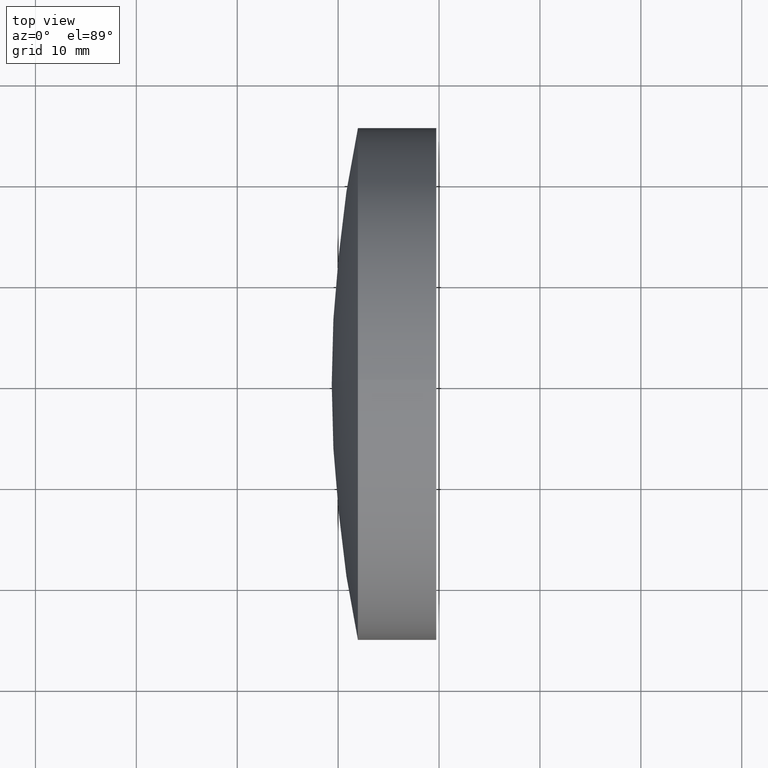
[diagram: clean part render]
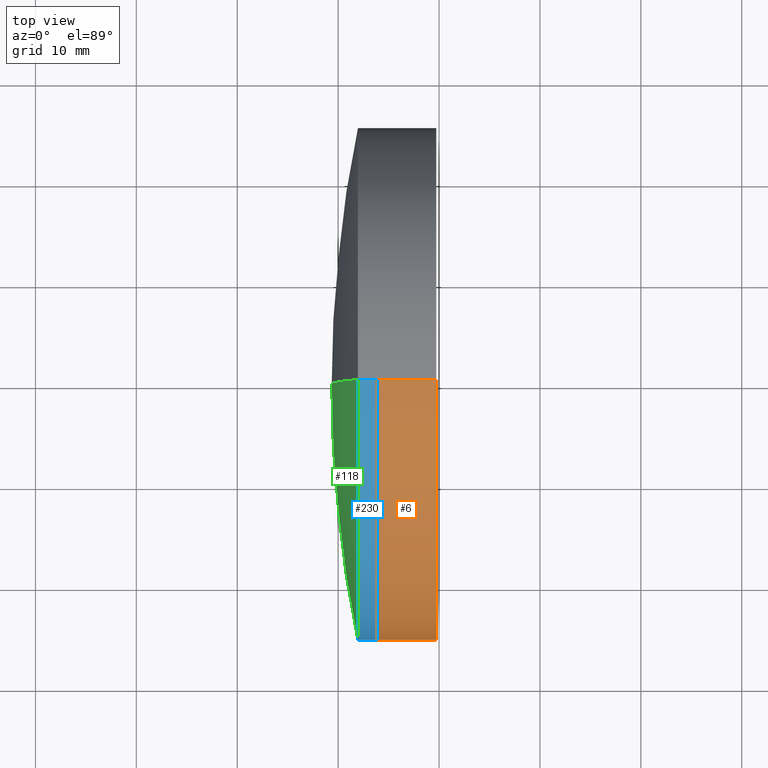
[diagram: same view with three faces highlighted in distinct colors, each labeled with its STEP entity id]
A machine part, top view with three faces highlighted in distinct colors.
Their STEP definitions:

[orange] entity #6 — the highlighted cylindrical surface (partial cylindrical patch) has radius 25.4 mm, axis along (-1, -0, -0).
#6 = ADVANCED_FACE ( 'NONE', ( #19 ), #63, .T. ) ;
#19 = FACE_OUTER_BOUND ( 'NONE', #71, .T. ) ;
#20 = EDGE_CURVE ( 'NONE', #305, #276, #72, .T. ) ;
#32 = DIRECTION ( 'NONE',  ( -1.000000000000000000, -0.0000000000000000000, -0.0000000000000000000 ) ) ;
#33 = EDGE_CURVE ( 'NONE', #60, #251, #267, .T. ) ;
#38 = VECTOR ( 'NONE', #32, 1000.000000000000000 ) ;
#39 = DIRECTION ( 'NONE',  ( 0.0000000000000000000, 0.0000000000000000000, 1.000000000000000000 ) ) ;
#58 = CARTESIAN_POINT ( 'NONE',  ( 209.7231034970280100, 0.0000000000000000000, -25.40000000000006300 ) ) ;
#60 = VERTEX_POINT ( 'NONE', #96 ) ;
#63 = CYLINDRICAL_SURFACE ( 'NONE', #67, 25.40000000000001300 ) ;
#67 = AXIS2_PLACEMENT_3D ( 'NONE', #206, #278, #39 ) ;
#71 = EDGE_LOOP ( 'NONE', ( #85, #148, #83, #233 ) ) ;
#72 = CIRCLE ( 'NONE', #153, 25.40000000000001300 ) ;
#81 = EDGE_CURVE ( 'NONE', #276, #251, #229, .T. ) ;
#83 = ORIENTED_EDGE ( 'NONE', *, *, #81, .T. ) ;
#85 = ORIENTED_EDGE ( 'NONE', *, *, #342, .F. ) ;
#96 = CARTESIAN_POINT ( 'NONE',  ( 203.8548626975037100, 0.0000000000000000000, -25.40000000000001300 ) ) ;
#98 = CARTESIAN_POINT ( 'NONE',  ( -0.5519199926577972300, 3.110602869834278400E-015, -25.40000000000001300 ) ) ;
#105 = CARTESIAN_POINT ( 'NONE',  ( 209.7231034970280100, -3.110602869834284800E-015, 25.40000000000006300 ) ) ;
#107 = CARTESIAN_POINT ( 'NONE',  ( 203.8548626975037100, 0.0000000000000000000, 0.0000000000000000000 ) ) ;
#111 = LINE ( 'NONE', #98, #38 ) ;
#116 = AXIS2_PLACEMENT_3D ( 'NONE', #107, #181, #236 ) ;
#117 = CARTESIAN_POINT ( 'NONE',  ( 209.7231034970280100, 0.0000000000000000000, 0.0000000000000000000 ) ) ;
#143 = DIRECTION ( 'NONE',  ( -1.000000000000000000, -0.0000000000000000000, -0.0000000000000000000 ) ) ;
#148 = ORIENTED_EDGE ( 'NONE', *, *, #20, .T. ) ;
#153 = AXIS2_PLACEMENT_3D ( 'NONE', #117, #143, #207 ) ;
#179 = CARTESIAN_POINT ( 'NONE',  ( -0.5519199926577972300, 0.0000000000000000000, 25.40000000000001300 ) ) ;
#181 = DIRECTION ( 'NONE',  ( -1.000000000000000000, -0.0000000000000000000, -0.0000000000000000000 ) ) ;
#182 = CARTESIAN_POINT ( 'NONE',  ( 203.8548626975037100, -3.110602869834278400E-015, 25.40000000000004100 ) ) ;
#204 = VECTOR ( 'NONE', #264, 1000.000000000000000 ) ;
#206 = CARTESIAN_POINT ( 'NONE',  ( -0.5519199926577972300, 0.0000000000000000000, 0.0000000000000000000 ) ) ;
#207 = DIRECTION ( 'NONE',  ( 0.0000000000000000000, 0.0000000000000000000, 1.000000000000000000 ) ) ;
#229 = LINE ( 'NONE', #179, #204 ) ;
#233 = ORIENTED_EDGE ( 'NONE', *, *, #33, .F. ) ;
#236 = DIRECTION ( 'NONE',  ( 0.0000000000000000000, 0.0000000000000000000, 1.000000000000000000 ) ) ;
#251 = VERTEX_POINT ( 'NONE', #182 ) ;
#264 = DIRECTION ( 'NONE',  ( -1.000000000000000000, -0.0000000000000000000, -0.0000000000000000000 ) ) ;
#267 = CIRCLE ( 'NONE', #116, 25.40000000000001300 ) ;
#276 = VERTEX_POINT ( 'NONE', #105 ) ;
#278 = DIRECTION ( 'NONE',  ( -1.000000000000000000, -0.0000000000000000000, -0.0000000000000000000 ) ) ;
#305 = VERTEX_POINT ( 'NONE', #58 ) ;
#342 = EDGE_CURVE ( 'NONE', #305, #60, #111, .T. ) ;

[blue] entity #230 — the highlighted cylindrical surface (partial cylindrical patch) has radius 25.4 mm, axis along (-1, -0, -0).
#2 = AXIS2_PLACEMENT_3D ( 'NONE', #18, #268, #275 ) ;
#10 = EDGE_CURVE ( 'NONE', #320, #245, #237, .T. ) ;
#13 = DIRECTION ( 'NONE',  ( 0.0000000000000000000, 0.0000000000000000000, 1.000000000000000000 ) ) ;
#18 = CARTESIAN_POINT ( 'NONE',  ( -0.8160621761658039000, 0.0000000000000000000, 0.0000000000000000000 ) ) ;
#21 = CYLINDRICAL_SURFACE ( 'NONE', #2, 25.40000000000002700 ) ;
#44 = CARTESIAN_POINT ( 'NONE',  ( 203.8548626975037100, 3.110602869834281200E-015, -25.40000000000003400 ) ) ;
#51 = CARTESIAN_POINT ( 'NONE',  ( 201.9598910091916100, 0.0000000000000000000, 0.0000000000000000000 ) ) ;
#55 = EDGE_CURVE ( 'NONE', #328, #304, #243, .T. ) ;
#57 = CARTESIAN_POINT ( 'NONE',  ( -0.8160621761658039000, 3.110602869834280400E-015, -25.40000000000002700 ) ) ;
#126 = EDGE_CURVE ( 'NONE', #245, #304, #208, .T. ) ;
#127 = CARTESIAN_POINT ( 'NONE',  ( 203.8548626975037100, 0.0000000000000000000, 25.40000000000003100 ) ) ;
#135 = AXIS2_PLACEMENT_3D ( 'NONE', #303, #228, #13 ) ;
#138 = CARTESIAN_POINT ( 'NONE',  ( 201.9598910091916100, -3.110602869834281600E-015, 25.40000000000007000 ) ) ;
#142 = LINE ( 'NONE', #57, #154 ) ;
#154 = VECTOR ( 'NONE', #282, 1000.000000000000000 ) ;
#161 = EDGE_CURVE ( 'NONE', #320, #328, #142, .T. ) ;
#170 = AXIS2_PLACEMENT_3D ( 'NONE', #51, #220, #180 ) ;
#178 = EDGE_LOOP ( 'NONE', ( #310, #287, #216, #211 ) ) ;
#180 = DIRECTION ( 'NONE',  ( 0.0000000000000000000, 0.0000000000000000000, 1.000000000000000000 ) ) ;
#208 = LINE ( 'NONE', #272, #248 ) ;
#211 = ORIENTED_EDGE ( 'NONE', *, *, #55, .F. ) ;
#213 = CARTESIAN_POINT ( 'NONE',  ( 201.9598910091916100, 0.0000000000000000000, -25.40000000000003800 ) ) ;
#216 = ORIENTED_EDGE ( 'NONE', *, *, #126, .T. ) ;
#220 = DIRECTION ( 'NONE',  ( -1.000000000000000000, -0.0000000000000000000, -0.0000000000000000000 ) ) ;
#228 = DIRECTION ( 'NONE',  ( -1.000000000000000000, -0.0000000000000000000, -0.0000000000000000000 ) ) ;
#230 = ADVANCED_FACE ( 'NONE', ( #262 ), #21, .T. ) ;
#237 = CIRCLE ( 'NONE', #135, 25.40000000000003100 ) ;
#243 = CIRCLE ( 'NONE', #170, 25.40000000000002700 ) ;
#245 = VERTEX_POINT ( 'NONE', #127 ) ;
#248 = VECTOR ( 'NONE', #325, 1000.000000000000000 ) ;
#262 = FACE_OUTER_BOUND ( 'NONE', #178, .T. ) ;
#268 = DIRECTION ( 'NONE',  ( -1.000000000000000000, -0.0000000000000000000, -0.0000000000000000000 ) ) ;
#272 = CARTESIAN_POINT ( 'NONE',  ( -0.8160621761658039000, 0.0000000000000000000, 25.40000000000002700 ) ) ;
#275 = DIRECTION ( 'NONE',  ( 0.0000000000000000000, 0.0000000000000000000, 1.000000000000000000 ) ) ;
#282 = DIRECTION ( 'NONE',  ( -1.000000000000000000, -0.0000000000000000000, -0.0000000000000000000 ) ) ;
#287 = ORIENTED_EDGE ( 'NONE', *, *, #10, .T. ) ;
#303 = CARTESIAN_POINT ( 'NONE',  ( 203.8548626975037100, 0.0000000000000000000, 0.0000000000000000000 ) ) ;
#304 = VERTEX_POINT ( 'NONE', #138 ) ;
#310 = ORIENTED_EDGE ( 'NONE', *, *, #161, .F. ) ;
#320 = VERTEX_POINT ( 'NONE', #44 ) ;
#325 = DIRECTION ( 'NONE',  ( -1.000000000000000000, -0.0000000000000000000, -0.0000000000000000000 ) ) ;
#328 = VERTEX_POINT ( 'NONE', #213 ) ;

[green] entity #118 — the highlighted spherical surface has radius 125.6 mm.
#26 = DIRECTION ( 'NONE',  ( 0.0000000000000000000, 1.224646799147353000E-016, -1.000000000000000000 ) ) ;
#29 = DIRECTION ( 'NONE',  ( 0.0000000000000000000, -1.000000000000000000, -1.224646799147353200E-016 ) ) ;
#36 = ORIENTED_EDGE ( 'NONE', *, *, #261, .T. ) ;
#37 = DIRECTION ( 'NONE',  ( 0.0000000000000000000, 0.0000000000000000000, -1.000000000000000000 ) ) ;
#45 = VERTEX_POINT ( 'NONE', #99 ) ;
#48 = SPHERICAL_SURFACE ( 'NONE', #90, 125.6000000000000200 ) ;
#51 = CARTESIAN_POINT ( 'NONE',  ( 201.9598910091916100, 0.0000000000000000000, 0.0000000000000000000 ) ) ;
#55 = EDGE_CURVE ( 'NONE', #328, #304, #243, .T. ) ;
#66 = EDGE_LOOP ( 'NONE', ( #266, #36, #190 ) ) ;
#82 = CIRCLE ( 'NONE', #231, 125.6000000000000200 ) ;
#90 = AXIS2_PLACEMENT_3D ( 'NONE', #313, #339, #37 ) ;
#99 = CARTESIAN_POINT ( 'NONE',  ( 199.3647689612468000, 0.0000000000000000000, 2.205018955359889700E-014 ) ) ;
#118 = ADVANCED_FACE ( 'NONE', ( #346 ), #48, .T. ) ;
#138 = CARTESIAN_POINT ( 'NONE',  ( 201.9598910091916100, -3.110602869834281600E-015, 25.40000000000007000 ) ) ;
#163 = DIRECTION ( 'NONE',  ( 0.0000000000000000000, 0.0000000000000000000, 1.000000000000000000 ) ) ;
#170 = AXIS2_PLACEMENT_3D ( 'NONE', #51, #220, #180 ) ;
#180 = DIRECTION ( 'NONE',  ( 0.0000000000000000000, 0.0000000000000000000, 1.000000000000000000 ) ) ;
#188 = CARTESIAN_POINT ( 'NONE',  ( 324.9647689612468200, 0.0000000000000000000, 2.974097145224427900E-014 ) ) ;
#190 = ORIENTED_EDGE ( 'NONE', *, *, #323, .F. ) ;
#213 = CARTESIAN_POINT ( 'NONE',  ( 201.9598910091916100, 0.0000000000000000000, -25.40000000000003800 ) ) ;
#215 = AXIS2_PLACEMENT_3D ( 'NONE', #259, #289, #163 ) ;
#220 = DIRECTION ( 'NONE',  ( -1.000000000000000000, -0.0000000000000000000, -0.0000000000000000000 ) ) ;
#223 = CIRCLE ( 'NONE', #215, 125.6000000000000200 ) ;
#231 = AXIS2_PLACEMENT_3D ( 'NONE', #188, #29, #26 ) ;
#243 = CIRCLE ( 'NONE', #170, 25.40000000000002700 ) ;
#259 = CARTESIAN_POINT ( 'NONE',  ( 324.9647689612468200, 0.0000000000000000000, 2.974097145224427900E-014 ) ) ;
#261 = EDGE_CURVE ( 'NONE', #304, #45, #82, .T. ) ;
#266 = ORIENTED_EDGE ( 'NONE', *, *, #55, .T. ) ;
#289 = DIRECTION ( 'NONE',  ( 0.0000000000000000000, 1.000000000000000000, -0.0000000000000000000 ) ) ;
#304 = VERTEX_POINT ( 'NONE', #138 ) ;
#313 = CARTESIAN_POINT ( 'NONE',  ( 324.9647689612468200, 0.0000000000000000000, 2.974097145224427900E-014 ) ) ;
#323 = EDGE_CURVE ( 'NONE', #328, #45, #223, .T. ) ;
#328 = VERTEX_POINT ( 'NONE', #213 ) ;
#339 = DIRECTION ( 'NONE',  ( -0.0000000000000000000, -1.000000000000000000, -0.0000000000000000000 ) ) ;
#346 = FACE_OUTER_BOUND ( 'NONE', #66, .T. ) ;